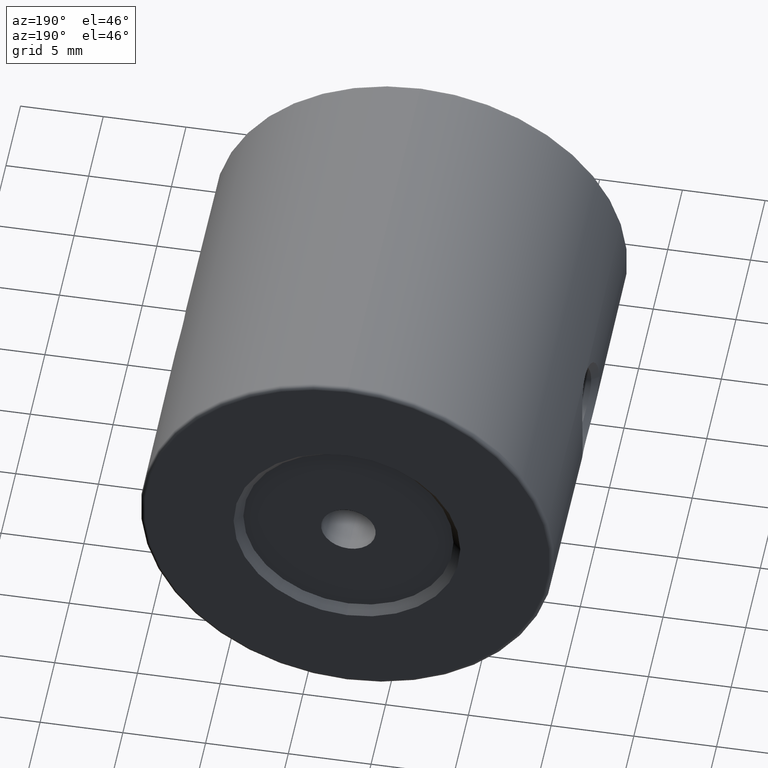
[diagram: clean part render]
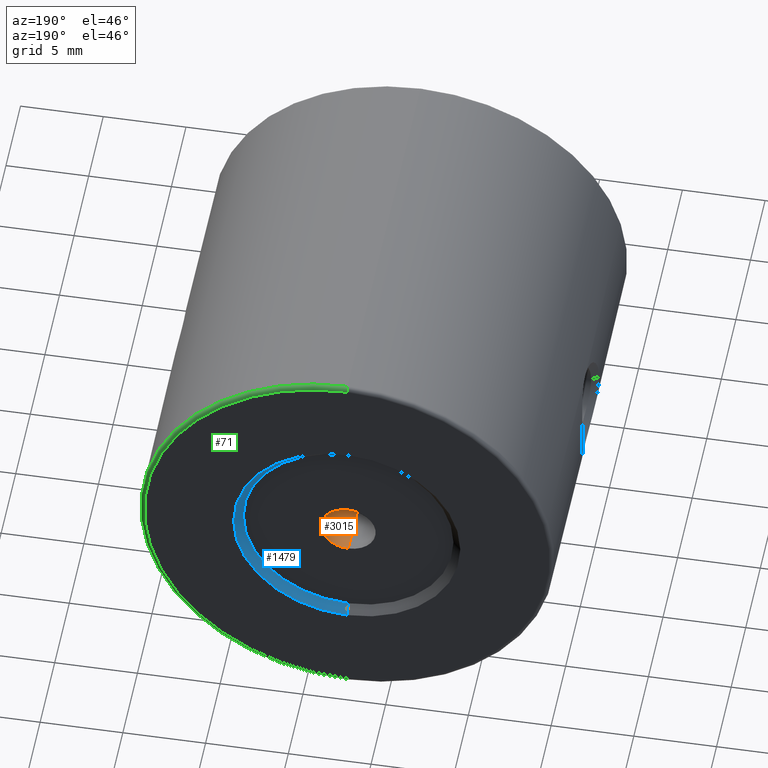
[diagram: same view with three faces highlighted in distinct colors, each labeled with its STEP entity id]
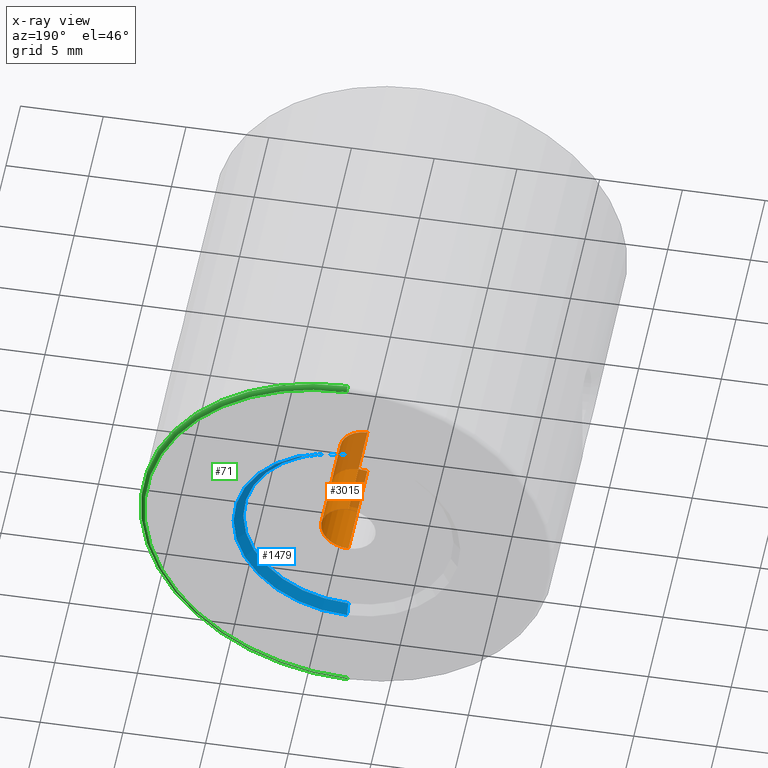
[diagram: x-ray of the same camera — body ghosted, the three highlighted faces saturated]
A machine part, auxiliary view with three faces highlighted in distinct colors.
The next image is the same camera in x-ray (body ghosted, the three faces saturated) — at least one of them is partly hidden behind the body in this view.
Their STEP definitions:

[orange] entity #3015 — the highlighted cylindrical surface (edge-blend (fillet) strip) has radius 1.65 mm, axis along (-0, 1, -0).
#4 = DIRECTION ( 'NONE',  ( -0.0000000000000000000, 1.000000000000000000, -0.0000000000000000000 ) ) ;
#19 = ORIENTED_EDGE ( 'NONE', *, *, #116, .T. ) ;
#116 = EDGE_CURVE ( 'NONE', #2065, #2379, #2276, .T. ) ;
#228 = DIRECTION ( 'NONE',  ( 0.0000000000000000000, 0.0000000000000000000, 1.000000000000000000 ) ) ;
#324 = EDGE_CURVE ( 'NONE', #2065, #2177, #1163, .T. ) ;
#447 = ORIENTED_EDGE ( 'NONE', *, *, #3200, .T. ) ;
#458 = CYLINDRICAL_SURFACE ( 'NONE', #2942, 1.649999999999998579 ) ;
#459 = DIRECTION ( 'NONE',  ( 0.0000000000000000000, 1.000000000000000000, 0.0000000000000000000 ) ) ;
#614 = CARTESIAN_POINT ( 'NONE',  ( -22.50520183104453409, 7.098252184769388684, 50.00000000000000000 ) ) ;
#721 = VECTOR ( 'NONE', #4, 1000.000000000000000 ) ;
#812 = EDGE_LOOP ( 'NONE', ( #1016, #3156, #19, #447 ) ) ;
#892 = CARTESIAN_POINT ( 'NONE',  ( -22.50520183104453409, 13.59825218476938780, 51.64999999999999858 ) ) ;
#1016 = ORIENTED_EDGE ( 'NONE', *, *, #2075, .F. ) ;
#1130 = CARTESIAN_POINT ( 'NONE',  ( -22.50520183104453409, 7.098252184769388684, 48.35000000000000142 ) ) ;
#1163 = CIRCLE ( 'NONE', #3274, 1.649999999999998579 ) ;
#1257 = DIRECTION ( 'NONE',  ( -0.0000000000000000000, 1.000000000000000000, -0.0000000000000000000 ) ) ;
#1363 = CARTESIAN_POINT ( 'NONE',  ( -22.50520183104453409, 13.59825218476938780, 48.35000000000000142 ) ) ;
#1700 = DIRECTION ( 'NONE',  ( 0.0000000000000000000, 0.0000000000000000000, 1.000000000000000000 ) ) ;
#1736 = AXIS2_PLACEMENT_3D ( 'NONE', #2678, #459, #228 ) ;
#1740 = DIRECTION ( 'NONE',  ( -0.0000000000000000000, 1.000000000000000000, -0.0000000000000000000 ) ) ;
#1804 = VERTEX_POINT ( 'NONE', #1363 ) ;
#2065 = VERTEX_POINT ( 'NONE', #2206 ) ;
#2075 = EDGE_CURVE ( 'NONE', #2177, #1804, #3292, .T. ) ;
#2177 = VERTEX_POINT ( 'NONE', #1130 ) ;
#2206 = CARTESIAN_POINT ( 'NONE',  ( -22.50520183104453409, 7.098252184769388684, 51.64999999999999858 ) ) ;
#2254 = DIRECTION ( 'NONE',  ( -0.0000000000000000000, 1.000000000000000000, -0.0000000000000000000 ) ) ;
#2276 = LINE ( 'NONE', #2319, #2428 ) ;
#2319 = CARTESIAN_POINT ( 'NONE',  ( -22.50520183104453409, 14.09825218476938780, 51.64999999999999858 ) ) ;
#2336 = FACE_OUTER_BOUND ( 'NONE', #812, .T. ) ;
#2379 = VERTEX_POINT ( 'NONE', #892 ) ;
#2409 = DIRECTION ( 'NONE',  ( 0.0000000000000000000, 0.0000000000000000000, 1.000000000000000000 ) ) ;
#2428 = VECTOR ( 'NONE', #1740, 1000.000000000000000 ) ;
#2664 = CIRCLE ( 'NONE', #1736, 1.649999999999998579 ) ;
#2677 = CARTESIAN_POINT ( 'NONE',  ( -22.50520183104453409, 14.09825218476938780, 50.00000000000000000 ) ) ;
#2678 = CARTESIAN_POINT ( 'NONE',  ( -22.50520183104453409, 13.59825218476938780, 50.00000000000000000 ) ) ;
#2762 = CARTESIAN_POINT ( 'NONE',  ( -22.50520183104453409, 14.09825218476938780, 48.35000000000000142 ) ) ;
#2942 = AXIS2_PLACEMENT_3D ( 'NONE', #2677, #1257, #2409 ) ;
#3015 = ADVANCED_FACE ( 'NONE', ( #2336 ), #458, .F. ) ;
#3156 = ORIENTED_EDGE ( 'NONE', *, *, #324, .F. ) ;
#3200 = EDGE_CURVE ( 'NONE', #2379, #1804, #2664, .T. ) ;
#3274 = AXIS2_PLACEMENT_3D ( 'NONE', #614, #2254, #1700 ) ;
#3292 = LINE ( 'NONE', #2762, #721 ) ;

[blue] entity #1479 — the highlighted conical surface has half-angle 45 deg.
#20 = DIRECTION ( 'NONE',  ( -0.0000000000000000000, -1.000000000000000000, -0.0000000000000000000 ) ) ;
#262 = CIRCLE ( 'NONE', #1454, 6.850000000000002309 ) ;
#427 = VERTEX_POINT ( 'NONE', #2016 ) ;
#438 = CARTESIAN_POINT ( 'NONE',  ( -22.50520183104453409, 14.09825218476938780, 56.85000000000000142 ) ) ;
#516 = ORIENTED_EDGE ( 'NONE', *, *, #2001, .F. ) ;
#585 = VERTEX_POINT ( 'NONE', #438 ) ;
#670 = EDGE_CURVE ( 'NONE', #762, #427, #2373, .T. ) ;
#762 = VERTEX_POINT ( 'NONE', #2076 ) ;
#991 = DIRECTION ( 'NONE',  ( 0.0000000000000000000, 0.0000000000000000000, 1.000000000000000000 ) ) ;
#1000 = AXIS2_PLACEMENT_3D ( 'NONE', #3165, #1505, #991 ) ;
#1188 = CARTESIAN_POINT ( 'NONE',  ( -22.50520183104453409, 14.09825218476938780, 43.14999999999999858 ) ) ;
#1393 = AXIS2_PLACEMENT_3D ( 'NONE', #2047, #2006, #2647 ) ;
#1402 = EDGE_LOOP ( 'NONE', ( #516, #2727, #1452, #1654 ) ) ;
#1452 = ORIENTED_EDGE ( 'NONE', *, *, #3009, .T. ) ;
#1454 = AXIS2_PLACEMENT_3D ( 'NONE', #2498, #20, #2780 ) ;
#1479 = ADVANCED_FACE ( 'NONE', ( #2875 ), #2938, .F. ) ;
#1505 = DIRECTION ( 'NONE',  ( 0.0000000000000000000, 1.000000000000000000, 0.0000000000000000000 ) ) ;
#1654 = ORIENTED_EDGE ( 'NONE', *, *, #1747, .F. ) ;
#1747 = EDGE_CURVE ( 'NONE', #2744, #585, #262, .T. ) ;
#1815 = DIRECTION ( 'NONE',  ( 0.0000000000000000000, 0.7071067811865505703, 0.7071067811865444641 ) ) ;
#2001 = EDGE_CURVE ( 'NONE', #427, #2744, #3324, .T. ) ;
#2006 = DIRECTION ( 'NONE',  ( 0.0000000000000000000, 1.000000000000000000, 0.0000000000000000000 ) ) ;
#2016 = CARTESIAN_POINT ( 'NONE',  ( -22.50520183104453409, 13.59825218476938780, 43.64999999999999858 ) ) ;
#2047 = CARTESIAN_POINT ( 'NONE',  ( -22.50520183104453409, 13.59825218476938069, 50.00000000000000000 ) ) ;
#2076 = CARTESIAN_POINT ( 'NONE',  ( -22.50520183104453409, 13.59825218476938780, 56.35000000000000142 ) ) ;
#2112 = LINE ( 'NONE', #3203, #3446 ) ;
#2373 = CIRCLE ( 'NONE', #1000, 6.350000000000001421 ) ;
#2476 = CARTESIAN_POINT ( 'NONE',  ( -22.50520183104453409, 13.59825218476938069, 43.64999999999999858 ) ) ;
#2483 = VECTOR ( 'NONE', #2514, 1000.000000000000000 ) ;
#2498 = CARTESIAN_POINT ( 'NONE',  ( -22.50520183104453409, 14.09825218476938780, 50.00000000000000000 ) ) ;
#2514 = DIRECTION ( 'NONE',  ( 8.659560562354895880E-17, 0.7071067811865505703, -0.7071067811865444641 ) ) ;
#2647 = DIRECTION ( 'NONE',  ( 0.0000000000000000000, 0.0000000000000000000, 1.000000000000000000 ) ) ;
#2727 = ORIENTED_EDGE ( 'NONE', *, *, #670, .F. ) ;
#2744 = VERTEX_POINT ( 'NONE', #1188 ) ;
#2780 = DIRECTION ( 'NONE',  ( 0.0000000000000000000, 0.0000000000000000000, 1.000000000000000000 ) ) ;
#2875 = FACE_OUTER_BOUND ( 'NONE', #1402, .T. ) ;
#2938 = CONICAL_SURFACE ( 'NONE', #1393, 6.350000000000001421, 0.7853981633974439491 ) ;
#3009 = EDGE_CURVE ( 'NONE', #762, #585, #2112, .T. ) ;
#3165 = CARTESIAN_POINT ( 'NONE',  ( -22.50520183104453409, 13.59825218476938780, 50.00000000000000000 ) ) ;
#3203 = CARTESIAN_POINT ( 'NONE',  ( -22.50520183104453409, 13.59825218476938069, 56.35000000000000142 ) ) ;
#3324 = LINE ( 'NONE', #2476, #2483 ) ;
#3446 = VECTOR ( 'NONE', #1815, 1000.000000000000000 ) ;

[green] entity #71 — the highlighted toroidal blend (fillet) surface has major radius 12.25 mm and minor (blend) radius 0.25 mm.
#69 = CARTESIAN_POINT ( 'NONE',  ( -22.50520183104453409, 13.84825218476938780, 50.00000000000000000 ) ) ;
#71 = ADVANCED_FACE ( 'NONE', ( #601 ), #311, .T. ) ;
#128 = DIRECTION ( 'NONE',  ( 1.000000000000000000, -0.0000000000000000000, 1.224646799147353207E-16 ) ) ;
#156 = AXIS2_PLACEMENT_3D ( 'NONE', #1580, #3448, #758 ) ;
#311 = TOROIDAL_SURFACE ( 'NONE', #3326, 12.25000000000000000, 0.2500000000000000000 ) ;
#332 = VERTEX_POINT ( 'NONE', #363 ) ;
#363 = CARTESIAN_POINT ( 'NONE',  ( -22.50520183104453409, 13.84825218476938780, 37.50000000000000711 ) ) ;
#444 = EDGE_CURVE ( 'NONE', #3260, #1933, #1445, .T. ) ;
#601 = FACE_OUTER_BOUND ( 'NONE', #3209, .T. ) ;
#725 = CARTESIAN_POINT ( 'NONE',  ( -22.50520183104453409, 13.84825218476938780, 62.25000000000000000 ) ) ;
#758 = DIRECTION ( 'NONE',  ( 0.0000000000000000000, 0.0000000000000000000, 1.000000000000000000 ) ) ;
#770 = CIRCLE ( 'NONE', #2196, 0.2500000000000002220 ) ;
#787 = DIRECTION ( 'NONE',  ( 0.0000000000000000000, 0.0000000000000000000, 1.000000000000000000 ) ) ;
#866 = ORIENTED_EDGE ( 'NONE', *, *, #2607, .T. ) ;
#871 = CARTESIAN_POINT ( 'NONE',  ( -22.50520183104453409, 13.84825218476938780, 37.75000000000000711 ) ) ;
#1010 = EDGE_CURVE ( 'NONE', #332, #3260, #1734, .T. ) ;
#1262 = ORIENTED_EDGE ( 'NONE', *, *, #1010, .F. ) ;
#1397 = CIRCLE ( 'NONE', #156, 12.24999999999999645 ) ;
#1445 = CIRCLE ( 'NONE', #2603, 0.2500000000000002220 ) ;
#1577 = CARTESIAN_POINT ( 'NONE',  ( -22.50520183104453409, 13.84825218476938780, 50.00000000000000000 ) ) ;
#1580 = CARTESIAN_POINT ( 'NONE',  ( -22.50520183104453409, 14.09825218476938780, 50.00000000000000000 ) ) ;
#1689 = CARTESIAN_POINT ( 'NONE',  ( -22.50520183104453409, 14.09825218476938780, 62.25000000000000000 ) ) ;
#1734 = CIRCLE ( 'NONE', #2820, 12.49999999999999645 ) ;
#1761 = DIRECTION ( 'NONE',  ( 0.0000000000000000000, 0.0000000000000000000, 1.000000000000000000 ) ) ;
#1933 = VERTEX_POINT ( 'NONE', #1689 ) ;
#1967 = ORIENTED_EDGE ( 'NONE', *, *, #444, .F. ) ;
#1971 = CARTESIAN_POINT ( 'NONE',  ( -22.50520183104453409, 14.09825218476938780, 37.75000000000000711 ) ) ;
#2196 = AXIS2_PLACEMENT_3D ( 'NONE', #871, #128, #3383 ) ;
#2406 = DIRECTION ( 'NONE',  ( -0.0000000000000000000, -1.000000000000000000, -0.0000000000000000000 ) ) ;
#2603 = AXIS2_PLACEMENT_3D ( 'NONE', #725, #3393, #2886 ) ;
#2607 = EDGE_CURVE ( 'NONE', #332, #2682, #770, .T. ) ;
#2682 = VERTEX_POINT ( 'NONE', #1971 ) ;
#2820 = AXIS2_PLACEMENT_3D ( 'NONE', #1577, #2406, #787 ) ;
#2886 = DIRECTION ( 'NONE',  ( 0.0000000000000000000, 0.0000000000000000000, 1.000000000000000000 ) ) ;
#2960 = ORIENTED_EDGE ( 'NONE', *, *, #3407, .F. ) ;
#3095 = DIRECTION ( 'NONE',  ( 0.0000000000000000000, 1.000000000000000000, 0.0000000000000000000 ) ) ;
#3209 = EDGE_LOOP ( 'NONE', ( #1262, #866, #2960, #1967 ) ) ;
#3260 = VERTEX_POINT ( 'NONE', #3431 ) ;
#3326 = AXIS2_PLACEMENT_3D ( 'NONE', #69, #3095, #1761 ) ;
#3383 = DIRECTION ( 'NONE',  ( 0.0000000000000000000, 0.0000000000000000000, -1.000000000000000000 ) ) ;
#3393 = DIRECTION ( 'NONE',  ( -1.000000000000000000, 0.0000000000000000000, 0.0000000000000000000 ) ) ;
#3407 = EDGE_CURVE ( 'NONE', #1933, #2682, #1397, .T. ) ;
#3431 = CARTESIAN_POINT ( 'NONE',  ( -22.50520183104453409, 13.84825218476938780, 62.50000000000000000 ) ) ;
#3448 = DIRECTION ( 'NONE',  ( 0.0000000000000000000, 1.000000000000000000, 0.0000000000000000000 ) ) ;